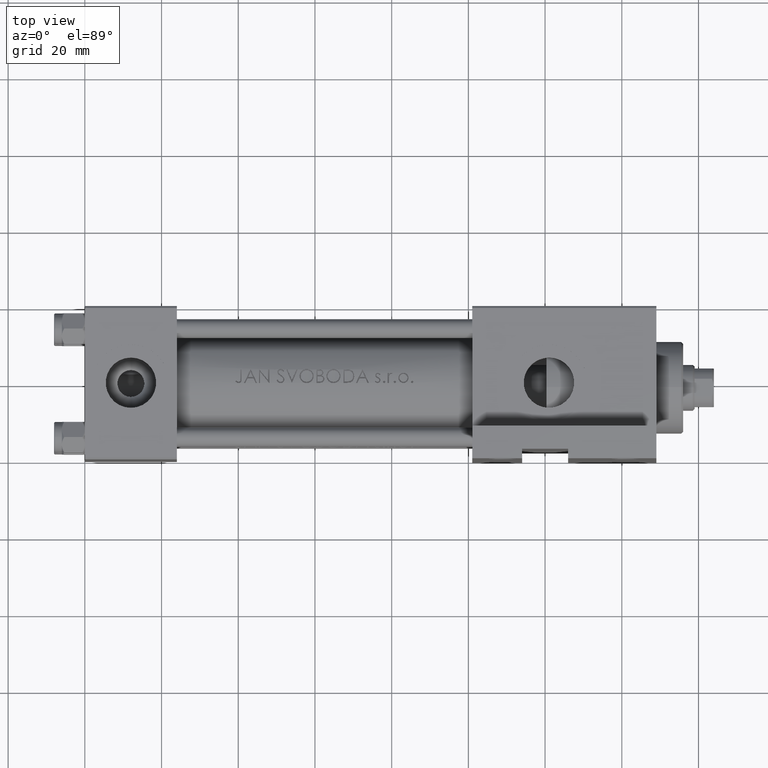
[diagram: clean part render]
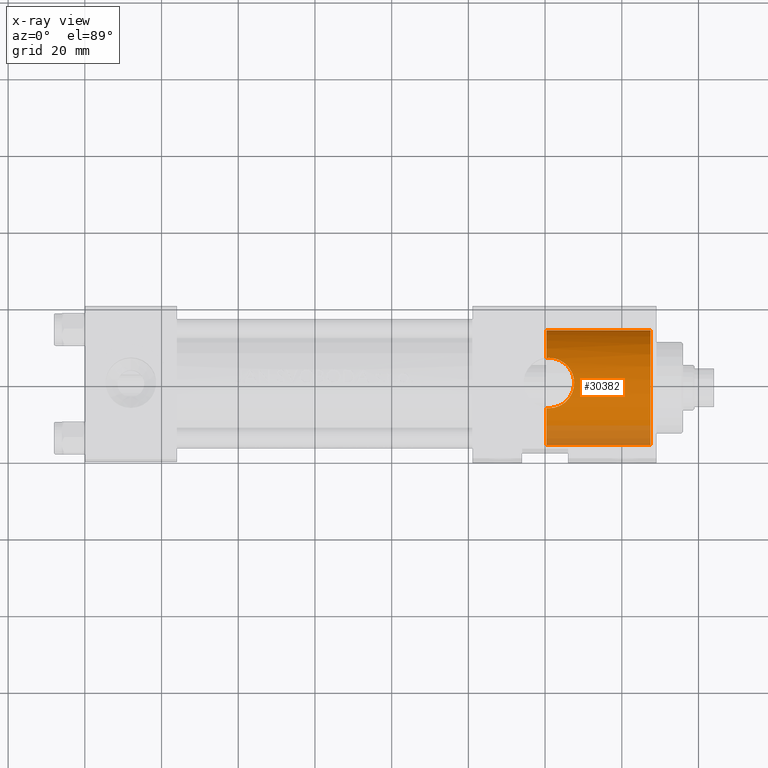
[diagram: x-ray — body ghosted, one internal face saturated and labeled with its STEP entity id]
A machine part, top view, then the same camera in x-ray: the body is ghosted and one INTERNAL B-rep face — a face not visible from any outside direction — is saturated and labeled: STEP entity #30382.
In plain terms, the highlighted cylindrical surface (partial cylindrical patch) has radius 15 mm, axis along (1, 0, 0).
Its self-contained STEP definition (entity closure, byte-faithful):
#193 = VERTEX_POINT ( 'NONE', #16980 ) ;
#919 = VERTEX_POINT ( 'NONE', #2424 ) ;
#1152 = EDGE_CURVE ( 'NONE', #12623, #17423, #14332, .T. ) ;
#1470 = CARTESIAN_POINT ( 'NONE',  ( 120.5341082140016056, -13.92843717928245262, -6.567707276148079920 ) ) ;
#2114 = EDGE_CURVE ( 'NONE', #31171, #193, #7519, .T. ) ;
#2307 = CARTESIAN_POINT ( 'NONE',  ( 120.3000000000000114, 0.000000000000000000, -1.000000000000000888 ) ) ;
#2424 = CARTESIAN_POINT ( 'NONE',  ( 121.0000000000000284, -12.94386341089862036, 6.580000000000001847 ) ) ;
#2553 = CARTESIAN_POINT ( 'NONE',  ( 120.3000000000000114, 1.836970198721029589E-15, 13.99999999999999822 ) ) ;
#2618 = DIRECTION ( 'NONE',  ( 0.000000000000000000, 0.000000000000000000, -1.000000000000000000 ) ) ;
#3277 = CARTESIAN_POINT ( 'NONE',  ( 126.1953745110316021, -14.12556139585160331, 4.060116510623634767 ) ) ;
#3724 = CARTESIAN_POINT ( 'NONE',  ( 120.3000000000000114, -13.93839732605630921, -6.542660009506838570 ) ) ;
#6001 = EDGE_CURVE ( 'NONE', #46329, #20372, #28306, .T. ) ;
#6359 = CARTESIAN_POINT ( 'NONE',  ( 147.5000000000000284, 1.836970198721029589E-15, 13.99999999999999822 ) ) ;
#6398 = CARTESIAN_POINT ( 'NONE',  ( 127.2597835887656572, -14.96702597749743902, -2.074533036098436423 ) ) ;
#6633 = CARTESIAN_POINT ( 'NONE',  ( 125.3311883376095039, -13.76394772769291741, 4.971192890930786312 ) ) ;
#6880 = CARTESIAN_POINT ( 'NONE',  ( 125.0411271395585828, -14.39909082229038262, -5.210704966854028619 ) ) ;
#7358 = CARTESIAN_POINT ( 'NONE',  ( 127.5744296126712953, -14.92981285423252302, 0.5141884850285654007 ) ) ;
#7441 = CARTESIAN_POINT ( 'NONE',  ( 120.3000000000000114, -12.96565771494012154, 6.542660009506836793 ) ) ;
#7519 = CIRCLE ( 'NONE', #31377, 15.00000000000000000 ) ;
#8443 = EDGE_CURVE ( 'NONE', #46329, #12623, #32995, .T. ) ;
#8747 = CARTESIAN_POINT ( 'NONE',  ( 120.3000000000000114, 0.000000000000000000, -16.00000000000000000 ) ) ;
#9997 = CYLINDRICAL_SURFACE ( 'NONE', #10799, 15.00000000000000000 ) ;
#10013 = CARTESIAN_POINT ( 'NONE',  ( 125.9267424430818352, -14.00495884624852572, 4.381684616014822176 ) ) ;
#10250 = CARTESIAN_POINT ( 'NONE',  ( 124.5054636800033734, -14.28659246824342510, -5.572662118825795652 ) ) ;
#10734 = CARTESIAN_POINT ( 'NONE',  ( 121.0000000000000142, -13.92349094157065181, -6.580000000000001847 ) ) ;
#10799 = AXIS2_PLACEMENT_3D ( 'NONE', #2307, #46399, #21292 ) ;
#11088 = DIRECTION ( 'NONE',  ( 0.000000000000000000, 0.000000000000000000, 1.000000000000000000 ) ) ;
#12065 = CARTESIAN_POINT ( 'NONE',  ( 121.0000000000000142, -13.92349094157065181, -6.580000000000001847 ) ) ;
#12140 = EDGE_CURVE ( 'NONE', #31171, #42436, #17738, .T. ) ;
#12355 = CARTESIAN_POINT ( 'NONE',  ( 147.5000000000000284, 0.000000000000000000, -16.00000000000000000 ) ) ;
#12623 = VERTEX_POINT ( 'NONE', #8747 ) ;
#13631 = CARTESIAN_POINT ( 'NONE',  ( 126.8787885192682268, -14.46625875797157512, 2.986143950077809084 ) ) ;
#13734 = ORIENTED_EDGE ( 'NONE', *, *, #31957, .T. ) ;
#13862 = CARTESIAN_POINT ( 'NONE',  ( 121.4356985834796490, -13.92349094157065181, -6.580000000000005400 ) ) ;
#14107 = CARTESIAN_POINT ( 'NONE',  ( 127.3915985170251162, -14.77832704599567926, 1.578153649324608443 ) ) ;
#14332 = LINE ( 'NONE', #45987, #47540 ) ;
#14580 = CARTESIAN_POINT ( 'NONE',  ( 123.9376354969069922, -14.18033197428408165, -5.891830599972641025 ) ) ;
#14693 = DIRECTION ( 'NONE',  ( 1.000000000000000000, 0.000000000000000000, 0.000000000000000000 ) ) ;
#15452 = AXIS2_PLACEMENT_3D ( 'NONE', #36857, #14693, #11088 ) ;
#15522 = CARTESIAN_POINT ( 'NONE',  ( 121.8703566362066795, -12.96962219536297489, 6.536476817755239921 ) ) ;
#16980 = CARTESIAN_POINT ( 'NONE',  ( 120.3000000000000114, -12.96565771494012154, 6.542660009506836793 ) ) ;
#17010 = CIRCLE ( 'NONE', #15452, 15.00000000000000000 ) ;
#17423 = VERTEX_POINT ( 'NONE', #12355 ) ;
#17552 = CARTESIAN_POINT ( 'NONE',  ( 120.3000000000000114, -13.93839732605630921, -6.542660009506838570 ) ) ;
#17710 = CARTESIAN_POINT ( 'NONE',  ( 127.5049471806765951, -15.00151096702658293, -1.014512858896957637 ) ) ;
#17738 = LINE ( 'NONE', #44254, #35605 ) ;
#17804 = CARTESIAN_POINT ( 'NONE',  ( 121.0000000000000284, -12.94386341089862036, 6.580000000000001847 ) ) ;
#18276 = CARTESIAN_POINT ( 'NONE',  ( 120.5324978063616754, -12.95118691542437084, 6.567534978436397886 ) ) ;
#18425 = CARTESIAN_POINT ( 'NONE',  ( 127.2051483655280464, -14.65624107651342278, 2.199773177191468143 ) ) ;
#20372 = VERTEX_POINT ( 'NONE', #29742 ) ;
#21061 = FACE_OUTER_BOUND ( 'NONE', #24813, .T. ) ;
#21292 = DIRECTION ( 'NONE',  ( 0.000000000000000000, 0.000000000000000000, -1.000000000000000000 ) ) ;
#21308 = CARTESIAN_POINT ( 'NONE',  ( 125.0003554952820508, -13.64232575446902906, 5.241333618900058333 ) ) ;
#21555 = CARTESIAN_POINT ( 'NONE',  ( 127.3833542692444638, -14.99178421008259932, -1.654655532235915993 ) ) ;
#22031 = CARTESIAN_POINT ( 'NONE',  ( 126.9292563417509996, -14.88647721061454021, -2.886606507622619056 ) ) ;
#22269 = CARTESIAN_POINT ( 'NONE',  ( 123.1381124013904440, -13.13972333735590148, 6.237569277628187692 ) ) ;
#24366 = EDGE_CURVE ( 'NONE', #20372, #919, #27054, .T. ) ;
#24688 = CARTESIAN_POINT ( 'NONE',  ( 124.2981701168886701, -13.41835060742348595, 5.709334118205696029 ) ) ;
#24813 = EDGE_LOOP ( 'NONE', ( #37450, #34298, #13734, #43332, #30917, #40893, #34756, #37746 ) ) ;
#25260 = CARTESIAN_POINT ( 'NONE',  ( 120.7672935331373196, -12.94386341089861681, 6.580000000000000959 ) ) ;
#25411 = CARTESIAN_POINT ( 'NONE',  ( 123.1459160792034169, -14.05788647029877758, -6.235192641581929429 ) ) ;
#25651 = CARTESIAN_POINT ( 'NONE',  ( 126.3715167783948914, -14.73623975893352700, -3.806502977433130486 ) ) ;
#27054 = B_SPLINE_CURVE_WITH_KNOTS ( 'NONE', 3,
 ( #10734, #13862, #43265, #47601, #25411, #39891, #14580, #28309, #10250, #6880, #40135, #29267, #39420, #43991, #25651, #28545, #22031, #6398, #21555, #17710, #43031, #40377, #39655, #7358, #36268, #14107, #36741, #18425, #33115, #13631, #36028, #3277, #10013, #6633, #21308, #24688, #28785, #22269, #44228, #15522, #44932, #29504 ),
 .UNSPECIFIED., .F., .F.,
 ( 4, 2, 2, 2, 2, 2, 2, 2, 2, 2, 2, 2, 2, 2, 2, 2, 2, 2, 2, 2, 4 ),
 ( 0.0006965638075759490169, 0.002001528455517358456, 0.003306493103458768221, 0.003958975427429491101, 0.004611457751400213981, 0.005916422399341660608, 0.006568904723312383488, 0.007221387047283104633, 0.008526351695224551261, 0.009831316343165997021, 0.01048379866713671123, 0.01113628099110742717, 0.01244124563904885905, 0.01309372796301957326, 0.01374621028699028920, 0.01505117493493175231, 0.01635613958287321368, 0.01766110423081467679, 0.01896606887875613989, 0.02027103352669760300, 0.02157599817463906611 ),
 .UNSPECIFIED. ) ;
#28306 = B_SPLINE_CURVE_WITH_KNOTS ( 'NONE', 3,
 ( #3724, #1470, #33988, #12065 ),
 .UNSPECIFIED., .F., .F.,
 ( 4, 4 ),
 ( 0.000000000000000000, 0.0006965638075759490169 ),
 .UNSPECIFIED. ) ;
#28309 = CARTESIAN_POINT ( 'NONE',  ( 124.3189673186315360, -14.24975467475568358, -5.685756420153608381 ) ) ;
#28545 = CARTESIAN_POINT ( 'NONE',  ( 126.7271808417478951, -14.83200468947066497, -3.268153802540151087 ) ) ;
#28785 = CARTESIAN_POINT ( 'NONE',  ( 123.9264804168203113, -13.31549965510340705, 5.908849930752861468 ) ) ;
#28915 = CARTESIAN_POINT ( 'NONE',  ( 120.3000000000000114, 0.000000000000000000, -1.000000000000000888 ) ) ;
#29015 = DIRECTION ( 'NONE',  ( 1.000000000000000000, -0.000000000000000000, -0.000000000000000000 ) ) ;
#29162 = DIRECTION ( 'NONE',  ( 0.000000000000000000, 0.000000000000000000, -1.000000000000000000 ) ) ;
#29267 = CARTESIAN_POINT ( 'NONE',  ( 125.8256392607727321, -14.59197228780391598, -4.478391284887368151 ) ) ;
#29504 = CARTESIAN_POINT ( 'NONE',  ( 121.0000000000000284, -12.94386341089862036, 6.580000000000001847 ) ) ;
#29742 = CARTESIAN_POINT ( 'NONE',  ( 121.0000000000000142, -13.92349094157065181, -6.580000000000001847 ) ) ;
#30382 = ADVANCED_FACE ( 'NONE', ( #21061 ), #9997, .F. ) ;
#30917 = ORIENTED_EDGE ( 'NONE', *, *, #8443, .F. ) ;
#31171 = VERTEX_POINT ( 'NONE', #2553 ) ;
#31377 = AXIS2_PLACEMENT_3D ( 'NONE', #35854, #35618, #2618 ) ;
#31957 = EDGE_CURVE ( 'NONE', #42436, #17423, #17010, .T. ) ;
#32906 = B_SPLINE_CURVE_WITH_KNOTS ( 'NONE', 3,
 ( #17804, #25260, #18276, #7441 ),
 .UNSPECIFIED., .F., .F.,
 ( 4, 4 ),
 ( 0.02157599817463906611, 0.02226740356188599765 ),
 .UNSPECIFIED. ) ;
#32995 = CIRCLE ( 'NONE', #42239, 15.00000000000000000 ) ;
#33115 = CARTESIAN_POINT ( 'NONE',  ( 127.1303715563461054, -14.61096465312831150, 2.400030649254205617 ) ) ;
#33141 = DIRECTION ( 'NONE',  ( 1.000000000000000000, -0.000000000000000000, -0.000000000000000000 ) ) ;
#33988 = CARTESIAN_POINT ( 'NONE',  ( 120.7674328842986000, -13.92349094157065004, -6.580000000000000959 ) ) ;
#34298 = ORIENTED_EDGE ( 'NONE', *, *, #12140, .T. ) ;
#34756 = ORIENTED_EDGE ( 'NONE', *, *, #24366, .T. ) ;
#34881 = EDGE_CURVE ( 'NONE', #919, #193, #32906, .T. ) ;
#35605 = VECTOR ( 'NONE', #33141, 1000.000000000000000 ) ;
#35618 = DIRECTION ( 'NONE',  ( 1.000000000000000000, 0.000000000000000000, 0.000000000000000000 ) ) ;
#35854 = CARTESIAN_POINT ( 'NONE',  ( 120.3000000000000114, 0.000000000000000000, -1.000000000000000888 ) ) ;
#36028 = CARTESIAN_POINT ( 'NONE',  ( 126.6738369720416273, -14.35736338889292085, 3.359171981963573028 ) ) ;
#36268 = CARTESIAN_POINT ( 'NONE',  ( 127.5262619954827272, -14.87965828697675619, 0.9439843966803067588 ) ) ;
#36741 = CARTESIAN_POINT ( 'NONE',  ( 127.3358205993226591, -14.73994095030600882, 1.788923028669893167 ) ) ;
#36857 = CARTESIAN_POINT ( 'NONE',  ( 147.5000000000000284, 0.000000000000000000, -1.000000000000000888 ) ) ;
#36868 = DIRECTION ( 'NONE',  ( 1.000000000000000000, 0.000000000000000000, 0.000000000000000000 ) ) ;
#37450 = ORIENTED_EDGE ( 'NONE', *, *, #2114, .F. ) ;
#37746 = ORIENTED_EDGE ( 'NONE', *, *, #34881, .T. ) ;
#39420 = CARTESIAN_POINT ( 'NONE',  ( 125.9712578428078302, -14.62983759305999776, -4.316228874994344267 ) ) ;
#39655 = CARTESIAN_POINT ( 'NONE',  ( 127.5821084598600095, -14.97701657026372857, -0.1415162717349485177 ) ) ;
#39891 = CARTESIAN_POINT ( 'NONE',  ( 123.7428249694657438, -14.14771836893921275, -5.984969253139951206 ) ) ;
#40135 = CARTESIAN_POINT ( 'NONE',  ( 125.3708777481617744, -14.47745739044342805, -4.937343295061567439 ) ) ;
#40377 = CARTESIAN_POINT ( 'NONE',  ( 127.5736260922921446, -14.98805174683068309, -0.3629356180319708858 ) ) ;
#40893 = ORIENTED_EDGE ( 'NONE', *, *, #6001, .T. ) ;
#42239 = AXIS2_PLACEMENT_3D ( 'NONE', #28915, #36868, #29162 ) ;
#42436 = VERTEX_POINT ( 'NONE', #6359 ) ;
#43031 = CARTESIAN_POINT ( 'NONE',  ( 127.5349899413855468, -15.00023639049713431, -0.7988671542189874630 ) ) ;
#43265 = CARTESIAN_POINT ( 'NONE',  ( 121.8687533917550780, -13.94089526584917138, -6.537155886361632362 ) ) ;
#43332 = ORIENTED_EDGE ( 'NONE', *, *, #1152, .F. ) ;
#43991 = CARTESIAN_POINT ( 'NONE',  ( 126.2441296143377514, -14.70196139133041591, -3.980243815275435360 ) ) ;
#44228 = CARTESIAN_POINT ( 'NONE',  ( 122.7175448203071682, -13.06688074960412749, 6.366560268581191728 ) ) ;
#44254 = CARTESIAN_POINT ( 'NONE',  ( 120.3000000000000114, 1.836970198721029589E-15, 13.99999999999999822 ) ) ;
#44932 = CARTESIAN_POINT ( 'NONE',  ( 121.4392122453838425, -12.94386341089861858, 6.580000000000000071 ) ) ;
#45987 = CARTESIAN_POINT ( 'NONE',  ( 120.3000000000000114, 0.000000000000000000, -16.00000000000000000 ) ) ;
#46329 = VERTEX_POINT ( 'NONE', #17552 ) ;
#46399 = DIRECTION ( 'NONE',  ( 1.000000000000000000, -0.000000000000000000, -0.000000000000000000 ) ) ;
#47540 = VECTOR ( 'NONE', #29015, 1000.000000000000000 ) ;
#47601 = CARTESIAN_POINT ( 'NONE',  ( 122.7295119398763177, -14.00850900728112336, -6.363798235967558448 ) ) ;